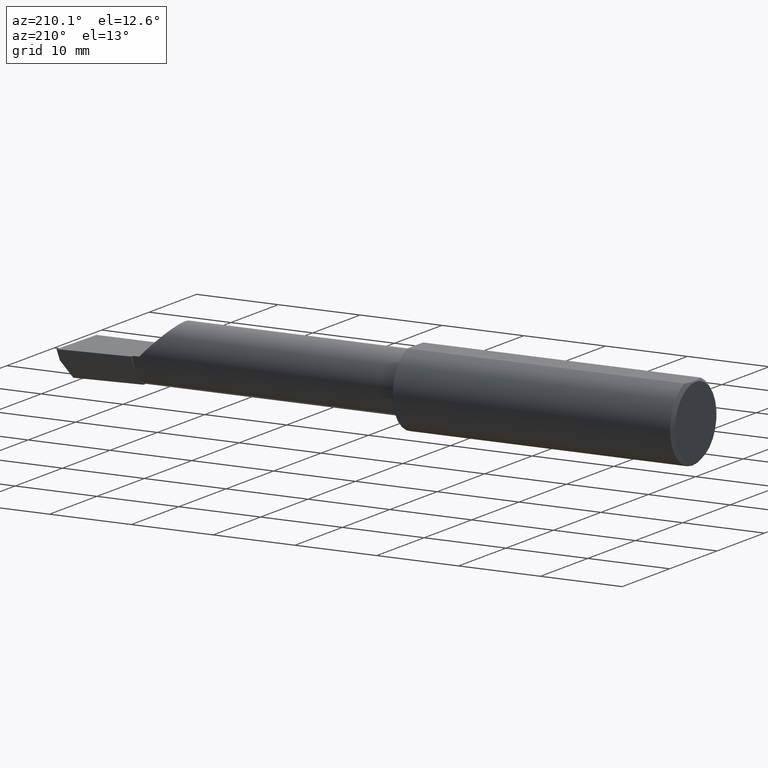
[diagram: clean part render]
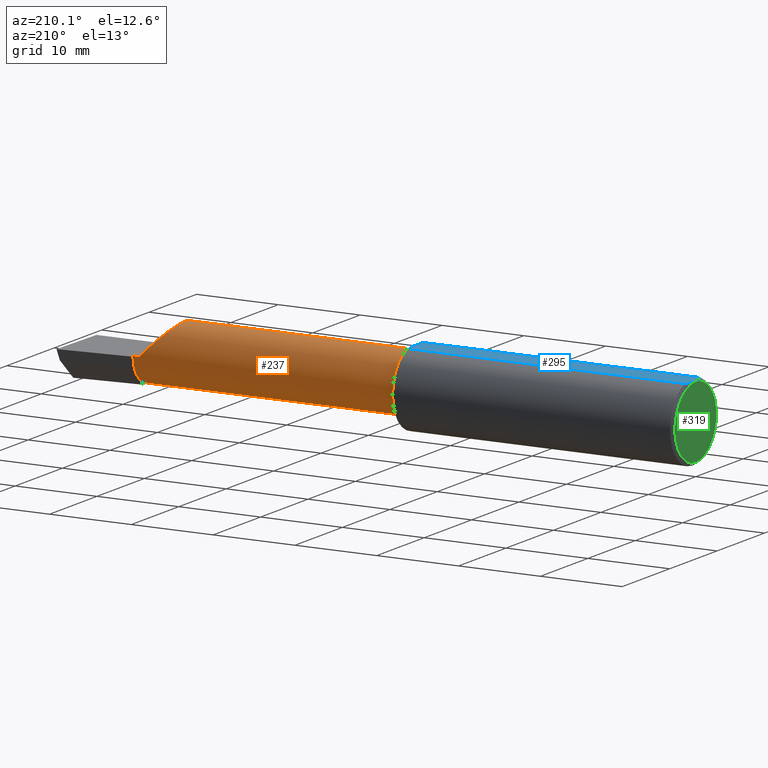
[diagram: same view with three faces highlighted in distinct colors, each labeled with its STEP entity id]
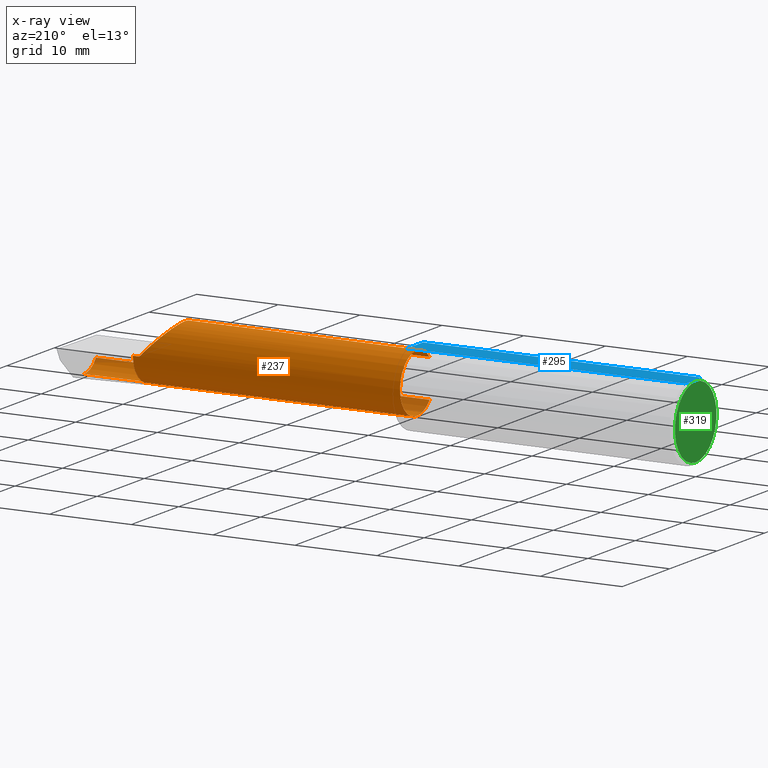
[diagram: x-ray of the same camera — body ghosted, the three highlighted faces saturated]
A machine part, auxiliary view with three faces highlighted in distinct colors.
The next image is the same camera in x-ray (body ghosted, the three faces saturated) — at least one of them is partly hidden behind the body in this view.
Their STEP definitions:

[orange] entity #237 — the highlighted cylindrical surface (edge-blend (fillet) strip) has radius 3.5573 mm, axis along (-1, -0, -0).
#2 = EDGE_LOOP ( 'NONE', ( #470, #54, #351, #475, #72, #394, #500, #101, #364, #507 ) ) ;
#4 = CARTESIAN_POINT ( 'NONE',  ( 2.659999999999999698, -0.05739999999999999963, -0.1400500000000000633 ) ) ;
#6 = DIRECTION ( 'NONE',  ( -1.000000000000000000, -5.691349986800549142E-18, -0.0000000000000000000 ) ) ;
#20 = AXIS2_PLACEMENT_3D ( 'NONE', #190, #218, #86 ) ;
#27 = DIRECTION ( 'NONE',  ( 0.0000000000000000000, -1.000000000000000000, 0.0000000000000000000 ) ) ;
#33 = CARTESIAN_POINT ( 'NONE',  ( 2.659999999999999698, -0.05739999999999999963, 0.0000000000000000000 ) ) ;
#37 = VERTEX_POINT ( 'NONE', #223 ) ;
#41 = DIRECTION ( 'NONE',  ( -1.000000000000000000, -5.691349986800549142E-18, -0.0000000000000000000 ) ) ;
#50 = VECTOR ( 'NONE', #416, 39.37007874015748143 ) ;
#54 = ORIENTED_EDGE ( 'NONE', *, *, #153, .T. ) ;
#65 = VERTEX_POINT ( 'NONE', #180 ) ;
#70 = CARTESIAN_POINT ( 'NONE',  ( 2.659999999999999698, -0.05739999999999999963, 0.0000000000000000000 ) ) ;
#72 = ORIENTED_EDGE ( 'NONE', *, *, #197, .T. ) ;
#74 = DIRECTION ( 'NONE',  ( 0.0000000000000000000, -1.000000000000000000, 0.0000000000000000000 ) ) ;
#75 = VECTOR ( 'NONE', #200, 39.37007874015748143 ) ;
#76 = DIRECTION ( 'NONE',  ( -1.000000000000000000, -5.691349986800549142E-18, -0.0000000000000000000 ) ) ;
#77 = CIRCLE ( 'NONE', #240, 0.1400500000000000356 ) ;
#78 = CARTESIAN_POINT ( 'NONE',  ( 2.659999999999999698, -0.05739999999999999963, 0.0000000000000000000 ) ) ;
#86 = DIRECTION ( 'NONE',  ( 0.0000000000000000000, -1.000000000000000000, 0.0000000000000000000 ) ) ;
#91 = LINE ( 'NONE', #585, #50 ) ;
#101 = ORIENTED_EDGE ( 'NONE', *, *, #564, .F. ) ;
#106 = CARTESIAN_POINT ( 'NONE',  ( 2.977925907309858733, -0.1365595166907236646, -0.1227499502647107915 ) ) ;
#114 = LINE ( 'NONE', #324, #75 ) ;
#116 = EDGE_CURVE ( 'NONE', #37, #65, #202, .T. ) ;
#142 = VERTEX_POINT ( 'NONE', #373 ) ;
#143 = EDGE_CURVE ( 'NONE', #287, #393, #360, .T. ) ;
#151 = EDGE_CURVE ( 'NONE', #306, #142, #201, .T. ) ;
#152 = CARTESIAN_POINT ( 'NONE',  ( 1.375000000000000000, -0.1635956445993028141, 0.09130436773856195898 ) ) ;
#153 = EDGE_CURVE ( 'NONE', #37, #393, #575, .T. ) ;
#158 = CARTESIAN_POINT ( 'NONE',  ( 2.017499999999999627, -0.1635956445993030084, -0.09130436773856182020 ) ) ;
#180 = CARTESIAN_POINT ( 'NONE',  ( 2.977873865042416135, -0.05739999999999999963, -0.1400500000000000633 ) ) ;
#185 = DIRECTION ( 'NONE',  ( -1.000000000000000000, -5.691349986800549142E-18, -0.0000000000000000000 ) ) ;
#190 = CARTESIAN_POINT ( 'NONE',  ( 1.375000000000000000, -0.05740000000000000657, 0.0000000000000000000 ) ) ;
#195 = DIRECTION ( 'NONE',  ( 0.0000000000000000000, -1.000000000000000000, 0.0000000000000000000 ) ) ;
#197 = EDGE_CURVE ( 'NONE', #535, #376, #466, .T. ) ;
#200 = DIRECTION ( 'NONE',  ( -1.000000000000000000, 5.691349986800548372E-18, -0.0000000000000000000 ) ) ;
#201 = CIRCLE ( 'NONE', #501, 0.1400500000000001188 ) ;
#202 =( BOUNDED_CURVE ( )  B_SPLINE_CURVE ( 3, ( #454, #106, #570, #536 ),
 .UNSPECIFIED., .F., .T. ) 
 B_SPLINE_CURVE_WITH_KNOTS ( ( 4, 4 ),
 ( 5.632580117768535288, 6.493234751459663556 ),
 .UNSPECIFIED. ) 
 CURVE ( )  GEOMETRIC_REPRESENTATION_ITEM ( )  RATIONAL_B_SPLINE_CURVE ( ( 1.000000000000000000, 0.9392195014330942948, 0.9392195014330942948, 1.000000000000000000 ) ) 
 REPRESENTATION_ITEM ( '' )  );
#213 = CARTESIAN_POINT ( 'NONE',  ( 2.659999999999999698, 0.01441505128072268979, -0.1202356058309982378 ) ) ;
#218 = DIRECTION ( 'NONE',  ( -1.000000000000000000, -5.691349986800549142E-18, -0.0000000000000000000 ) ) ;
#223 = CARTESIAN_POINT ( 'NONE',  ( 2.981080296960511244, -0.1635956445993030084, -0.09130436773856182020 ) ) ;
#226 = VERTEX_POINT ( 'NONE', #4 ) ;
#228 = CARTESIAN_POINT ( 'NONE',  ( 2.659999999999999698, 0.08265000000000008451, 3.563723795045364098E-16 ) ) ;
#237 = ADVANCED_FACE ( 'NONE', ( #285 ), #506, .T. ) ;
#240 = AXIS2_PLACEMENT_3D ( 'NONE', #70, #242, #195 ) ;
#242 = DIRECTION ( 'NONE',  ( 1.000000000000000000, 5.691349986800549142E-18, 0.0000000000000000000 ) ) ;
#262 = CIRCLE ( 'NONE', #558, 0.1400500000000001188 ) ;
#270 = EDGE_CURVE ( 'NONE', #65, #226, #114, .T. ) ;
#281 = VERTEX_POINT ( 'NONE', #213 ) ;
#285 = FACE_OUTER_BOUND ( 'NONE', #2, .T. ) ;
#287 = VERTEX_POINT ( 'NONE', #152 ) ;
#296 = VECTOR ( 'NONE', #185, 39.37007874015748143 ) ;
#302 = EDGE_CURVE ( 'NONE', #281, #226, #262, .T. ) ;
#303 = LINE ( 'NONE', #545, #486 ) ;
#306 = VERTEX_POINT ( 'NONE', #228 ) ;
#324 = CARTESIAN_POINT ( 'NONE',  ( 3.000000000000000444, -0.05739999999999999963, -0.1400500000000000633 ) ) ;
#331 = CARTESIAN_POINT ( 'NONE',  ( 2.475085956200449022, 0.08265000000000004288, 0.1549140437995496777 ) ) ;
#351 = ORIENTED_EDGE ( 'NONE', *, *, #143, .F. ) ;
#360 = CIRCLE ( 'NONE', #20, 0.1400499999999999523 ) ;
#363 = EDGE_CURVE ( 'NONE', #287, #535, #91, .T. ) ;
#364 = ORIENTED_EDGE ( 'NONE', *, *, #302, .T. ) ;
#373 = CARTESIAN_POINT ( 'NONE',  ( 2.659999999999999698, 0.06495571228477965697, -0.06814016562413265088 ) ) ;
#376 = VERTEX_POINT ( 'NONE', #438 ) ;
#393 = VERTEX_POINT ( 'NONE', #571 ) ;
#394 = ORIENTED_EDGE ( 'NONE', *, *, #512, .T. ) ;
#416 = DIRECTION ( 'NONE',  ( 1.000000000000000000, 5.691349986800549142E-18, 0.0000000000000000000 ) ) ;
#438 = CARTESIAN_POINT ( 'NONE',  ( 2.629999999999999893, 0.08264999999999983471, -1.592040838891560883E-17 ) ) ;
#440 = CARTESIAN_POINT ( 'NONE',  ( 0.0000000000000000000, -0.05740000000000001351, 0.0000000000000000000 ) ) ;
#454 = CARTESIAN_POINT ( 'NONE',  ( 2.981080296960511244, -0.1635956445993030084, -0.09130436773856182020 ) ) ;
#463 = CARTESIAN_POINT ( 'NONE',  ( 2.629999999999999893, 0.08264999999999983471, -1.592040838891560883E-17 ) ) ;
#466 =( BOUNDED_CURVE ( )  B_SPLINE_CURVE ( 3, ( #549, #539, #331, #463 ),
 .UNSPECIFIED., .F., .T. ) 
 B_SPLINE_CURVE_WITH_KNOTS ( ( 4, 4 ),
 ( 5.422530673488456188, 7.853981633974482790 ),
 .UNSPECIFIED. ) 
 CURVE ( )  GEOMETRIC_REPRESENTATION_ITEM ( )  RATIONAL_B_SPLINE_CURVE ( ( 1.000000000000000000, 0.5651045289226855894, 0.5651045289226855894, 1.000000000000000000 ) ) 
 REPRESENTATION_ITEM ( '' )  );
#470 = ORIENTED_EDGE ( 'NONE', *, *, #116, .F. ) ;
#475 = ORIENTED_EDGE ( 'NONE', *, *, #363, .T. ) ;
#481 = AXIS2_PLACEMENT_3D ( 'NONE', #440, #6, #502 ) ;
#486 = VECTOR ( 'NONE', #524, 39.37007874015748143 ) ;
#500 = ORIENTED_EDGE ( 'NONE', *, *, #151, .T. ) ;
#501 = AXIS2_PLACEMENT_3D ( 'NONE', #33, #41, #27 ) ;
#502 = DIRECTION ( 'NONE',  ( 5.691349986800549913E-18, -1.000000000000000000, 0.0000000000000000000 ) ) ;
#506 = CYLINDRICAL_SURFACE ( 'NONE', #481, 0.1400500000000000078 ) ;
#507 = ORIENTED_EDGE ( 'NONE', *, *, #270, .F. ) ;
#512 = EDGE_CURVE ( 'NONE', #376, #306, #303, .T. ) ;
#524 = DIRECTION ( 'NONE',  ( 1.000000000000000000, 5.691349986800549142E-18, 0.0000000000000000000 ) ) ;
#535 = VERTEX_POINT ( 'NONE', #583 ) ;
#536 = CARTESIAN_POINT ( 'NONE',  ( 2.977873865042416135, -0.05739999999999999963, -0.1400500000000000633 ) ) ;
#539 = CARTESIAN_POINT ( 'NONE',  ( 2.421229036482943187, -0.06260079402492466083, 0.2087709635170540146 ) ) ;
#545 = CARTESIAN_POINT ( 'NONE',  ( -7.970735656513664102E-19, 0.08264999999999998737, 3.563723795045361633E-16 ) ) ;
#549 = CARTESIAN_POINT ( 'NONE',  ( 2.538695632261437130, -0.1635956445993032027, 0.09130436773856151489 ) ) ;
#558 = AXIS2_PLACEMENT_3D ( 'NONE', #78, #76, #74 ) ;
#564 = EDGE_CURVE ( 'NONE', #281, #142, #77, .T. ) ;
#570 = CARTESIAN_POINT ( 'NONE',  ( 2.976787929832032997, -0.09887019258091189755, -0.1400500000000000356 ) ) ;
#571 = CARTESIAN_POINT ( 'NONE',  ( 1.375000000000000000, -0.1635956445993029529, -0.09130436773856182020 ) ) ;
#575 = LINE ( 'NONE', #158, #296 ) ;
#583 = CARTESIAN_POINT ( 'NONE',  ( 2.538695632261437130, -0.1635956445993032027, 0.09130436773856151489 ) ) ;
#585 = CARTESIAN_POINT ( 'NONE',  ( 2.017499999999999627, -0.1635956445993030084, 0.09130436773856182020 ) ) ;

[blue] entity #295 — the highlighted planar face has unit normal (0, -0, -1).
#10 = CARTESIAN_POINT ( 'NONE',  ( 1.350000000000000089, 0.2373500000000000332, 0.1753499999999999504 ) ) ;
#83 = DIRECTION ( 'NONE',  ( -1.000000000000000000, -0.0000000000000000000, -0.0000000000000000000 ) ) ;
#93 = DIRECTION ( 'NONE',  ( 0.0000000000000000000, 1.000000000000000000, -1.438723400918613551E-16 ) ) ;
#94 = ORIENTED_EDGE ( 'NONE', *, *, #596, .F. ) ;
#95 = ORIENTED_EDGE ( 'NONE', *, *, #377, .F. ) ;
#96 = DIRECTION ( 'NONE',  ( 0.0000000000000000000, -1.438723400918613551E-16, -1.000000000000000000 ) ) ;
#103 = PLANE ( 'NONE',  #387 ) ;
#109 = VECTOR ( 'NONE', #122, 39.37007874015748143 ) ;
#118 = CARTESIAN_POINT ( 'NONE',  ( 0.01499999999999997863, -0.06597272163553657975, 0.1753499999999999781 ) ) ;
#121 = CARTESIAN_POINT ( 'NONE',  ( 3.000000000000000444, 0.2373500000000000332, 0.1753499999999999504 ) ) ;
#122 = DIRECTION ( 'NONE',  ( 5.691349986800549142E-18, -1.000000000000000000, 1.438723400918613551E-16 ) ) ;
#162 = LINE ( 'NONE', #547, #386 ) ;
#204 = FACE_OUTER_BOUND ( 'NONE', #248, .T. ) ;
#206 = B_SPLINE_CURVE_WITH_KNOTS ( 'NONE', 3,
 ( #548, #522, #372, #369, #542, #586 ),
 .UNSPECIFIED., .F., .F.,
 ( 4, 2, 4 ),
 ( 0.003480013901590607410, 0.004330767971208085432, 0.005181522040825563453 ),
 .UNSPECIFIED. ) ;
#247 = LINE ( 'NONE', #318, #312 ) ;
#248 = EDGE_LOOP ( 'NONE', ( #354, #255, #95, #94, #484 ) ) ;
#255 = ORIENTED_EDGE ( 'NONE', *, *, #421, .F. ) ;
#295 = ADVANCED_FACE ( 'NONE', ( #204 ), #103, .F. ) ;
#312 = VECTOR ( 'NONE', #316, 39.37007874015748143 ) ;
#316 = DIRECTION ( 'NONE',  ( 1.000000000000000000, 0.0000000000000000000, 0.0000000000000000000 ) ) ;
#318 = CARTESIAN_POINT ( 'NONE',  ( 0.0000000000000000000, 0.06597272163553677404, 0.1753499999999999226 ) ) ;
#326 = CARTESIAN_POINT ( 'NONE',  ( 0.01128414053810044074, -0.05542038647445821781, 0.1753499999999999781 ) ) ;
#330 = CARTESIAN_POINT ( 'NONE',  ( 0.01499999999999997863, -0.06597272163553657975, 0.1753499999999999781 ) ) ;
#335 = VERTEX_POINT ( 'NONE', #485 ) ;
#354 = ORIENTED_EDGE ( 'NONE', *, *, #380, .F. ) ;
#356 = CARTESIAN_POINT ( 'NONE',  ( 0.008227791779583793277, -0.04447712204611815184, 0.1753499999999999781 ) ) ;
#368 = CARTESIAN_POINT ( 'NONE',  ( 0.004093196532652217806, -0.02240707710020815174, 0.1753499999999999504 ) ) ;
#369 = CARTESIAN_POINT ( 'NONE',  ( 0.008244775919947433529, 0.04453482769755864185, 0.1753499999999999504 ) ) ;
#372 = CARTESIAN_POINT ( 'NONE',  ( 0.004115035183746283340, 0.02255629470626750385, 0.1753499999999999781 ) ) ;
#377 = EDGE_CURVE ( 'NONE', #335, #538, #206, .T. ) ;
#380 = EDGE_CURVE ( 'NONE', #528, #557, #425, .T. ) ;
#386 = VECTOR ( 'NONE', #83, 39.37007874015748143 ) ;
#387 = AXIS2_PLACEMENT_3D ( 'NONE', #121, #96, #93 ) ;
#389 = VERTEX_POINT ( 'NONE', #118 ) ;
#421 = EDGE_CURVE ( 'NONE', #538, #528, #247, .T. ) ;
#424 = EDGE_CURVE ( 'NONE', #557, #389, #162, .T. ) ;
#425 = LINE ( 'NONE', #10, #109 ) ;
#484 = ORIENTED_EDGE ( 'NONE', *, *, #424, .F. ) ;
#485 = CARTESIAN_POINT ( 'NONE',  ( 0.003000000000000218638, 2.334609607045083916E-17, 0.1753499999999999781 ) ) ;
#497 = CARTESIAN_POINT ( 'NONE',  ( 1.350000000000000089, -0.06597272163553659363, 0.1753499999999999781 ) ) ;
#522 = CARTESIAN_POINT ( 'NONE',  ( 0.003000000000000172234, 0.01127363201155565098, 0.1753499999999999781 ) ) ;
#528 = VERTEX_POINT ( 'NONE', #562 ) ;
#530 = B_SPLINE_CURVE_WITH_KNOTS ( 'NONE', 3,
 ( #330, #326, #356, #368, #531, #565 ),
 .UNSPECIFIED., .F., .F.,
 ( 4, 2, 4 ),
 ( 0.001779942938356815062, 0.002629978419973711019, 0.003480013901590607410 ),
 .UNSPECIFIED. ) ;
#531 = CARTESIAN_POINT ( 'NONE',  ( 0.003000000000000171800, -0.01126410975715119375, 0.1753500000000000059 ) ) ;
#538 = VERTEX_POINT ( 'NONE', #588 ) ;
#542 = CARTESIAN_POINT ( 'NONE',  ( 0.01125230581755091823, 0.05532998191409932431, 0.1753500000000000059 ) ) ;
#547 = CARTESIAN_POINT ( 'NONE',  ( 0.0000000000000000000, -0.06597272163553671853, 0.1753499999999999226 ) ) ;
#548 = CARTESIAN_POINT ( 'NONE',  ( 0.003000000000000218638, 2.334609607045083916E-17, 0.1753499999999999781 ) ) ;
#557 = VERTEX_POINT ( 'NONE', #497 ) ;
#562 = CARTESIAN_POINT ( 'NONE',  ( 1.350000000000000089, 0.06597272163553680180, 0.1753499999999999781 ) ) ;
#565 = CARTESIAN_POINT ( 'NONE',  ( 0.003000000000000218638, 2.334609607045083916E-17, 0.1753499999999999781 ) ) ;
#586 = CARTESIAN_POINT ( 'NONE',  ( 0.01499999999999999424, 0.06597272163553677404, 0.1753499999999999226 ) ) ;
#588 = CARTESIAN_POINT ( 'NONE',  ( 0.01499999999999999424, 0.06597272163553677404, 0.1753499999999999226 ) ) ;
#596 = EDGE_CURVE ( 'NONE', #389, #335, #530, .T. ) ;

[green] entity #319 — the highlighted planar face has unit normal (1, 0, 0).
#5 = DIRECTION ( 'NONE',  ( 0.0000000000000000000, 0.0000000000000000000, -1.000000000000000000 ) ) ;
#9 = DIRECTION ( 'NONE',  ( 1.000000000000000000, 0.0000000000000000000, 0.0000000000000000000 ) ) ;
#12 = AXIS2_PLACEMENT_3D ( 'NONE', #104, #478, #589 ) ;
#17 = FACE_OUTER_BOUND ( 'NONE', #98, .T. ) ;
#25 = CARTESIAN_POINT ( 'NONE',  ( 0.0000000000000000000, 0.0000000000000000000, 0.0000000000000000000 ) ) ;
#30 = PLANE ( 'NONE',  #127 ) ;
#46 = VERTEX_POINT ( 'NONE', #214 ) ;
#60 = DIRECTION ( 'NONE',  ( -1.000000000000000000, -0.0000000000000000000, -0.0000000000000000000 ) ) ;
#62 = CARTESIAN_POINT ( 'NONE',  ( 0.0000000000000000000, 0.0000000000000000000, 0.0000000000000000000 ) ) ;
#71 = CIRCLE ( 'NONE', #12, 0.1723499999999996424 ) ;
#89 = EDGE_CURVE ( 'NONE', #46, #472, #591, .T. ) ;
#98 = EDGE_LOOP ( 'NONE', ( #576, #446 ) ) ;
#104 = CARTESIAN_POINT ( 'NONE',  ( 0.0000000000000000000, 0.0000000000000000000, 0.0000000000000000000 ) ) ;
#127 = AXIS2_PLACEMENT_3D ( 'NONE', #25, #9, #5 ) ;
#214 = CARTESIAN_POINT ( 'NONE',  ( 0.0000000000000000000, 0.0000000000000000000, -0.1723499999999996424 ) ) ;
#220 = EDGE_CURVE ( 'NONE', #472, #46, #71, .T. ) ;
#319 = ADVANCED_FACE ( 'NONE', ( #17 ), #30, .F. ) ;
#390 = AXIS2_PLACEMENT_3D ( 'NONE', #62, #60, #498 ) ;
#446 = ORIENTED_EDGE ( 'NONE', *, *, #220, .T. ) ;
#472 = VERTEX_POINT ( 'NONE', #510 ) ;
#478 = DIRECTION ( 'NONE',  ( -1.000000000000000000, -0.0000000000000000000, -0.0000000000000000000 ) ) ;
#498 = DIRECTION ( 'NONE',  ( 0.0000000000000000000, 0.0000000000000000000, 1.000000000000000000 ) ) ;
#510 = CARTESIAN_POINT ( 'NONE',  ( 0.0000000000000000000, 2.202527268266512578E-17, 0.1723499999999996424 ) ) ;
#576 = ORIENTED_EDGE ( 'NONE', *, *, #89, .T. ) ;
#589 = DIRECTION ( 'NONE',  ( 0.0000000000000000000, 0.0000000000000000000, 1.000000000000000000 ) ) ;
#591 = CIRCLE ( 'NONE', #390, 0.1723499999999996424 ) ;